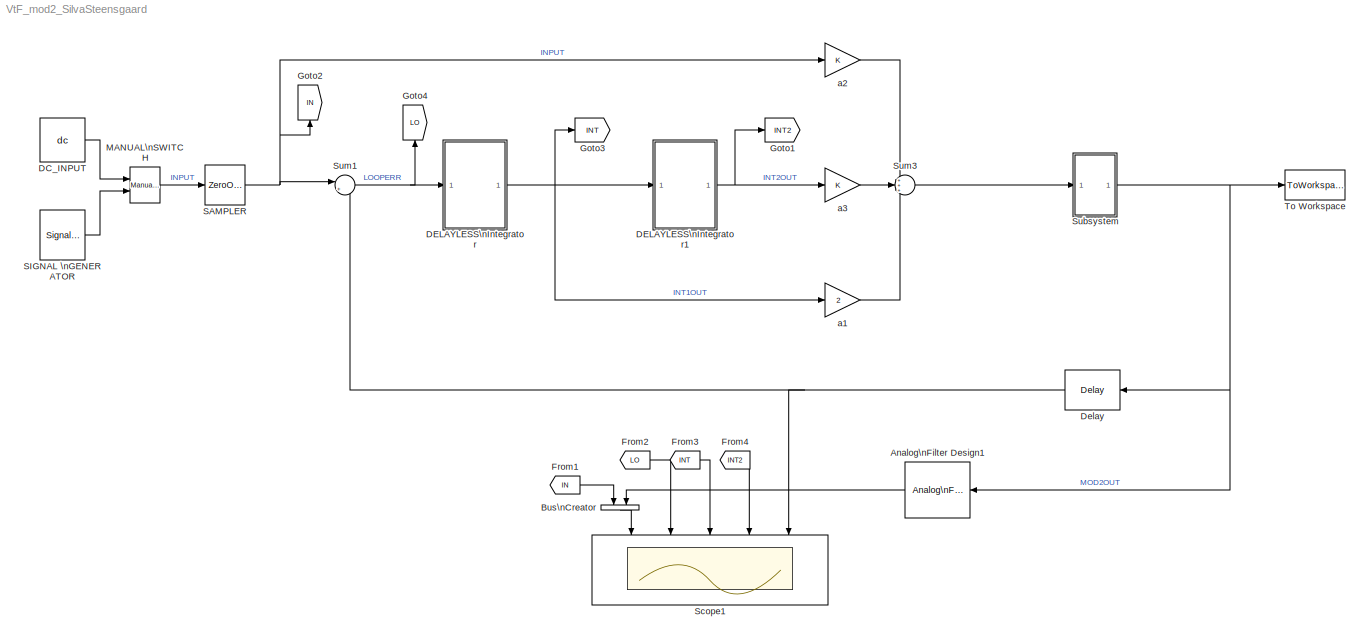
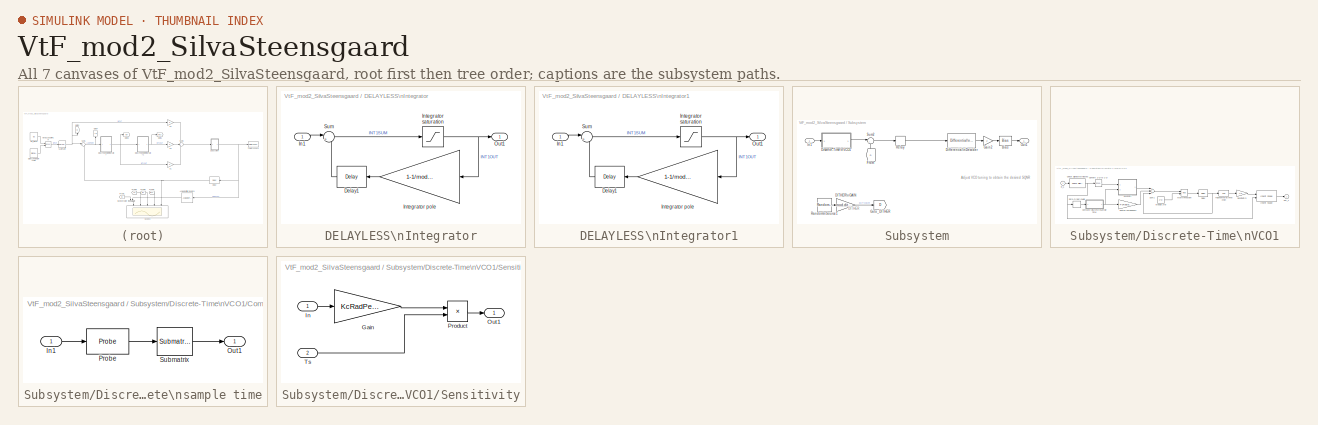
[diagram: thumbnail index - all 7 canvases of the model, root first then tree order]
MODEL VtF_mod2_SilvaSteensgaard
KIND model
BLOCK [Reference] Analog\nFilter Design1  REF=dsparch4/Analog\nFilter Design
  N = 8
  Ports = [1, 1]
  Rp = 2
  Rs = 40
  SID = 166
  SourceBlock = dsparch4/Analog\nFilter Design
  SourceType = Analog Filter Design
  Whi = 80
  Wlo = pi*(Fs/OSR)
  filttype = Lowpass
  method = Butterworth
BLOCK [BusCreator] Bus\nCreator
  DisplayOption = bar
  Inputs = 2
  Ports = [2, 1]
  SID = 167
BLOCK [Constant] DC_INPUT
  OutDataTypeStr = double
  SID = 56
  SampleTime = 1/Fs
  Value = dc
  VectorParams1D = off
BLOCK [SubSystem] DELAYLESS\nIntegrator
  FunctionWithSeparateData = off
  MaskHideContents = off
  MinAlgLoopOccurrences = off
  Opaque = off
  Ports = [1, 1]
  PropExecContextOutsideSubsystem = off
  RTWSystemCode = Auto
  RequestExecContextInheritance = off
  SID = 147
BLOCK [Reference] DELAYLESS\nIntegrator/Delay1  REF=dspsigops/Delay
  InputProcessing = Inherited (this choice will be removed - see release notes)
  Ports = [1, 1]
  SID = 149
  SourceBlock = dspsigops/Delay
  SourceType = Delay
  UserData = DataTag0
  UserDataPersistent = on
  delay = 1
  dif_ic_for_ch = off
  dif_ic_for_dly = off
  dly_unit = Samples
  ic = 0
  ic_detail = off
  reset_popup = None
BLOCK [Inport] DELAYLESS\nIntegrator/In1
  IconDisplay = Port number
  SID = 148
BLOCK [Gain] DELAYLESS\nIntegrator/Integrator pole
  AttributesFormatString = (model finite dc gain)
  Gain = 1-1/mod.igain1
  OutDataTypeStr = Inherit: Inherit via internal rule
  ParamDataTypeStr = Inherit: Inherit via internal rule
  SID = 150
  SaturateOnIntegerOverflow = off
BLOCK [Saturate] DELAYLESS\nIntegrator/Integrator saturation
  InputPortMap = u0
  LowerLimit = -(mod.isat1)
  Ports = [1, 1]
  SID = 151
  UpperLimit = mod.isat1
BLOCK [Outport] DELAYLESS\nIntegrator/Out1
  IconDisplay = Port number
  SID = 153
BLOCK [Sum] DELAYLESS\nIntegrator/Sum
  AttributesFormatString = Integrator summer
  IconShape = round
  InputSameDT = off
  Inputs = |++
  OutDataTypeStr = Inherit: Inherit via internal rule
  Ports = [2, 1]
  SID = 152
  SampleTime = 1/Fs
  SaturateOnIntegerOverflow = off
BLOCK [SubSystem] DELAYLESS\nIntegrator1
  FunctionWithSeparateData = off
  MaskHideContents = off
  MinAlgLoopOccurrences = off
  Opaque = off
  Ports = [1, 1]
  PropExecContextOutsideSubsystem = off
  RTWSystemCode = Auto
  RequestExecContextInheritance = off
  SID = 155
BLOCK [Reference] DELAYLESS\nIntegrator1/Delay1  REF=dspsigops/Delay
  InputProcessing = Inherited (this choice will be removed - see release notes)
  Ports = [1, 1]
  SID = 157
  SourceBlock = dspsigops/Delay
  SourceType = Delay
  UserData = DataTag1
  UserDataPersistent = on
  delay = 1
  dif_ic_for_ch = off
  dif_ic_for_dly = off
  dly_unit = Samples
  ic = 0
  ic_detail = off
  reset_popup = None
BLOCK [Inport] DELAYLESS\nIntegrator1/In1
  IconDisplay = Port number
  SID = 156
BLOCK [Gain] DELAYLESS\nIntegrator1/Integrator pole
  AttributesFormatString = (model finite dc gain)
  Gain = 1-1/mod.igain1
  OutDataTypeStr = Inherit: Inherit via internal rule
  ParamDataTypeStr = Inherit: Inherit via internal rule
  SID = 158
  SaturateOnIntegerOverflow = off
BLOCK [Saturate] DELAYLESS\nIntegrator1/Integrator saturation
  InputPortMap = u0
  LowerLimit = -(mod.isat1)
  Ports = [1, 1]
  SID = 159
  UpperLimit = mod.isat1
BLOCK [Outport] DELAYLESS\nIntegrator1/Out1
  IconDisplay = Port number
  SID = 161
BLOCK [Sum] DELAYLESS\nIntegrator1/Sum
  AttributesFormatString = Integrator summer
  IconShape = round
  InputSameDT = off
  Inputs = |++
  OutDataTypeStr = Inherit: Inherit via internal rule
  Ports = [2, 1]
  SID = 160
  SampleTime = 1/Fs
  SaturateOnIntegerOverflow = off
BLOCK [Reference] Delay  REF=dspsigops/Delay
  InputProcessing = Inherited (this choice will be removed - see release notes)
  Ports = [1, 1]
  SID = 163
  SourceBlock = dspsigops/Delay
  SourceType = Delay
  UserData = DataTag2
  UserDataPersistent = on
  delay = 1
  dif_ic_for_ch = off
  dif_ic_for_dly = off
  dly_unit = Samples
  ic = 0
  ic_detail = off
  reset_popup = None
BLOCK [From] From1
  GotoTag = IN
  SID = 168
BLOCK [From] From2
  GotoTag = LO
  SID = 169
BLOCK [From] From3
  GotoTag = INT
  SID = 170
BLOCK [From] From4
  GotoTag = INT2
  SID = 174
BLOCK [Goto] Goto1
  GotoTag = INT2
  SID = 182
BLOCK [Goto] Goto2
  GotoTag = IN
  SID = 183
BLOCK [Goto] Goto3
  GotoTag = INT
  SID = 181
BLOCK [Goto] Goto4
  GotoTag = LO
  SID = 184
BLOCK [Reference] MANUAL\nSWITCH  REF=simulink/Signal\nRouting/Manual Switch
  AttributesFormatString = Double click to\\nselect the desired\\ninput
  Ports = [2, 1]
  SID = 74
  SourceBlock = simulink/Signal\nRouting/Manual Switch
  SourceType = Manual Switch
  action = 0
  sw = 0
  varsize = off
BLOCK [ZeroOrderHold] SAMPLER
  SID = 164
  SampleTime = 1/Fs
BLOCK [SignalGenerator] SIGNAL \nGENERATOR
  Amplitude = sinamp
  Frequency = sinfreq
  Ports = [0, 1]
  SID = 86
  VectorParams1D = off
BLOCK [Scope] Scope1
  DataFormat = StructureWithTime
  Floating = off
  NumInputPorts = 5
  Ports = [5]
  SID = 171
  SampleTime = 0
  ShowLegends = off
  TimeRange = 2.089895171320487e-05
  YMax = 1.1~1.6~1.6~0.1~5
  YMin = -1.1~-0.6~-0.6~-0.3~-5
  ZoomMode = xonly
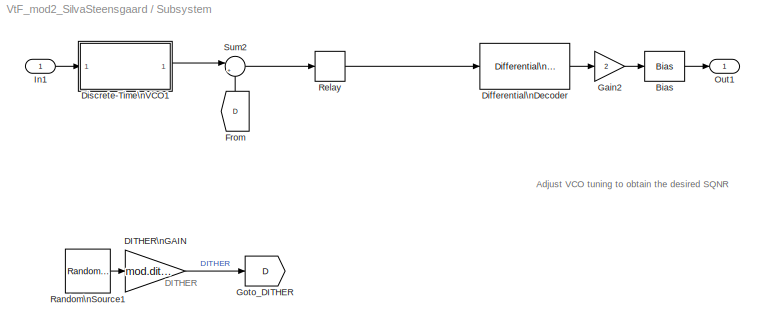
BLOCK [SubSystem] Subsystem
  FunctionWithSeparateData = off
  MaskHideContents = off
  MinAlgLoopOccurrences = off
  Opaque = off
  Ports = [1, 1]
  PropExecContextOutsideSubsystem = off
  RTWSystemCode = Auto
  RequestExecContextInheritance = off
  SID = 144
BLOCK [Bias] Subsystem/Bias
  Bias = -1
  SID = 134
  SaturateOnIntegerOverflow = off
BLOCK [Gain] Subsystem/DITHER\nGAIN
  Gain = mod.dither
  OutDataTypeStr = Inherit: Inherit via internal rule
  ParamDataTypeStr = Inherit: Inherit via internal rule
  SID = 175
  SampleTime = 1/Fs
  SaturateOnIntegerOverflow = off
BLOCK [Reference] Subsystem/Differential\nDecoder  REF=commsrccod2/Differential\nDecoder
  InitCond = 0
  Ports = [1, 1]
  SID = 135
  SourceBlock = commsrccod2/Differential\nDecoder
  SourceType = Differential Decoder
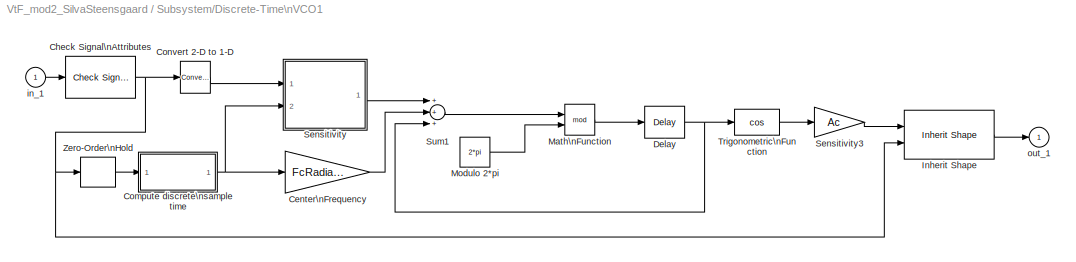
BLOCK [SubSystem] Subsystem/Discrete-Time\nVCO1
  AncestorBlock = commsynccomp2/Discrete-Time\nVCO
  FunctionWithSeparateData = off
  MaskCallbackString = ||||
  MaskCapabilities = commmaskedcaps(gcbh)
  MaskDescription = Generate a discrete-time output signal whose frequency changes in response to the amplitude variations of the input signal. The input signal must be a scalar.
  MaskDisplay = disp('Discrete-Time\\nVCO')
  MaskEnableString = on,on,on,on,on
  MaskHelp = helpview(commbhelp)
  MaskHideContents = off
  MaskIconFrame = on
  MaskIconOpaque = on
  MaskIconRotate = none
  MaskIconUnits = autoscale
  MaskInitialization = if ( (length(Ac)~=1) || (length(Fc)~=1) || (length(Kc)~=1) || (length(Ph)~=1) || (length(ts)~=1) ) \n	error('commblks:DiscTimeVCO:InvalidMaskParams',...\n          'Mask parameters must be scalar values.');\nend\nFcRadians = 2*pi*Fc;\nKcRadPerV = 2*pi*Kc;\n
  MaskPortRotate = default
  MaskPromptString = Output amplitude (V):|Quiescent frequency (Hz):|Input sensitivity (Hz/V):|Initial phase (rad):|Sample time (s):
  MaskSelfModifiable = on
  MaskStyleString = edit,edit,edit,edit,edit
  MaskToolTipString = on,on,on,on,on
  MaskTunableValueString = on,on,on,on,on
  MaskType = Discrete-Time VCO
  MaskValueString = sinamp*2|Fs/4|sinfreq*2|0|1/Fs
  MaskVariables = Ac=@1;Fc=@2;Kc=@3;Ph=@4;ts=@5;
  MaskVisibilityString = on,on,on,on,on
  MinAlgLoopOccurrences = off
  Opaque = off
  Ports = [1, 1]
  PropExecContextOutsideSubsystem = off
  RTWSystemCode = Auto
  RequestExecContextInheritance = off
  SID = 136
BLOCK [Gain] Subsystem/Discrete-Time\nVCO1/Center\nFrequency
  Gain = FcRadians
  OutDataTypeStr = Inherit: Inherit via back propagation
  ParamDataTypeStr = float('double')
  RndMeth = Nearest
  SID = 136:2
  SampleTime = ts
BLOCK [Reference] Subsystem/Discrete-Time\nVCO1/Check Signal\nAttributes  REF=dspsigattribs/Check Signal\nAttributes
  Complexity = Ignore
  DatatypeCheckMethod = Is...
  DatatypeGeneral = Floating-point
  Dimensions = Scalar (1-D or 2-D)
  DimsCheckMethod = Is...
  DtypeFixedSpecific = Any fixed-point
  DtypeFloatSpecific = Any floating-point
  DtypeIntSpecific = Any integer
  Frame = Ignore
  Ports = [1, 1]
  SID = 136:3
  SampleMode = Discrete
  SigAttribCheckMethod = Does not match attributes exactly
  SourceBlock = dspsigattribs/Check Signal\nAttributes
  SourceType = Check Signal Attributes
BLOCK [SubSystem] Subsystem/Discrete-Time\nVCO1/Compute discrete\nsample time
  FunctionWithSeparateData = off
  MaskHideContents = off
  MinAlgLoopOccurrences = off
  Opaque = off
  Ports = [1, 1]
  PropExecContextOutsideSubsystem = off
  RTWSystemCode = Auto
  RequestExecContextInheritance = off
  SID = 136:4
BLOCK [Inport] Subsystem/Discrete-Time\nVCO1/Compute discrete\nsample time/In1
  IconDisplay = Port number
  SID = 136:5
BLOCK [Outport] Subsystem/Discrete-Time\nVCO1/Compute discrete\nsample time/Out1
  IconDisplay = Port number
  SID = 136:8
BLOCK [Probe] Subsystem/Discrete-Time\nVCO1/Compute discrete\nsample time/Probe
  Ports = [1, 1]
  ProbeComplexSignal = off
  ProbeWidth = off
  SID = 136:6
BLOCK [Reference] Subsystem/Discrete-Time\nVCO1/Compute discrete\nsample time/Submatrix  REF=dspmtrx3/Submatrix
  ColEndIndex = 1
  ColEndMode = Last
  ColSpan = One column
  ColStartIndex = 1
  ColStartMode = First
  Ports = [1, 1]
  RowEndIndex = 1
  RowEndMode = Last
  RowSpan = One row
  RowStartIndex = 1
  RowStartMode = First
  SID = 136:7
  SourceBlock = dspmtrx3/Submatrix
  SourceType = Submatrix
BLOCK [Reference] Subsystem/Discrete-Time\nVCO1/Convert 2-D to 1-D  REF=dspsigattribs/Convert 2-D to 1-D
  Ports = [1, 1]
  SID = 136:9
  SourceBlock = dspsigattribs/Convert 2-D to 1-D
  SourceType = Convert 2-D to 1-D
BLOCK [Reference] Subsystem/Discrete-Time\nVCO1/Delay  REF=dspsigops/Delay
  InputProcessing = Columns as channels (frame based)
  Ports = [1, 1]
  SID = 136:10
  SourceBlock = dspsigops/Delay
  SourceType = Delay
  UserData = DataTag3
  UserDataPersistent = on
  delay = 1
  dif_ic_for_ch = off
  dif_ic_for_dly = off
  dly_unit = Samples
  ic = Ph
  ic_detail = on
  reset_popup = None
BLOCK [Reference] Subsystem/Discrete-Time\nVCO1/Inherit Shape  REF=commblksprivate/Inherit Shape
  Ports = [2, 1]
  SID = 136:11
  SourceBlock = commblksprivate/Inherit Shape
  SourceType = Inherit Shape
BLOCK [Math] Subsystem/Discrete-Time\nVCO1/Math\nFunction
  Operator = mod
  Ports = [2, 1]
  SID = 136:12
BLOCK [Constant] Subsystem/Discrete-Time\nVCO1/Modulo 2*pi
  OutDataTypeStr = Inherit: Inherit via back propagation
  SID = 136:13
  SampleTime = ts
  Value = 2*pi
BLOCK [SubSystem] Subsystem/Discrete-Time\nVCO1/Sensitivity
  FunctionWithSeparateData = off
  MaskHideContents = off
  MinAlgLoopOccurrences = off
  Opaque = off
  Ports = [2, 1]
  PropExecContextOutsideSubsystem = off
  RTWSystemCode = Auto
  RequestExecContextInheritance = off
  SID = 136:14
BLOCK [Gain] Subsystem/Discrete-Time\nVCO1/Sensitivity/Gain
  Gain = KcRadPerV
  ParamDataTypeStr = float('double')
  SID = 136:17
BLOCK [Inport] Subsystem/Discrete-Time\nVCO1/Sensitivity/In
  IconDisplay = Port number
  SID = 136:15
BLOCK [Outport] Subsystem/Discrete-Time\nVCO1/Sensitivity/Out1
  IconDisplay = Port number
  SID = 136:19
BLOCK [Product] Subsystem/Discrete-Time\nVCO1/Sensitivity/Product
  InputSameDT = off
  Ports = [2, 1]
  RndMeth = Nearest
  SID = 136:18
BLOCK [Inport] Subsystem/Discrete-Time\nVCO1/Sensitivity/Ts
  IconDisplay = Port number
  Port = 2
  SID = 136:16
BLOCK [Gain] Subsystem/Discrete-Time\nVCO1/Sensitivity3
  Gain = Ac
  SID = 136:20
BLOCK [Sum] Subsystem/Discrete-Time\nVCO1/Sum1
  Inputs = +++
  Ports = [3, 1]
  SID = 136:21
BLOCK [Trigonometry] Subsystem/Discrete-Time\nVCO1/Trigonometric\nFunction
  Operator = cos
  Ports = [1, 1]
  SID = 136:22
BLOCK [ZeroOrderHold] Subsystem/Discrete-Time\nVCO1/Zero-Order\nHold
  SID = 136:23
  SampleTime = ts
BLOCK [Inport] Subsystem/Discrete-Time\nVCO1/in_1
  IconDisplay = Port number
  SID = 136:1
BLOCK [Outport] Subsystem/Discrete-Time\nVCO1/out_1
  IconDisplay = Port number
  InitialOutput = 0
  SID = 136:24
BLOCK [From] Subsystem/From
  GotoTag = D
  SID = 179
BLOCK [Gain] Subsystem/Gain2
  Gain = 2
  OutDataTypeStr = Inherit: Inherit via internal rule
  ParamDataTypeStr = Inherit: Inherit via internal rule
  SID = 138
  SampleTime = 1/Fs
  SaturateOnIntegerOverflow = off
BLOCK [Goto] Subsystem/Goto_DITHER
  GotoTag = D
  SID = 176
BLOCK [Inport] Subsystem/In1
  IconDisplay = Port number
  SID = 146
BLOCK [Outport] Subsystem/Out1
  IconDisplay = Port number
  SID = 145
BLOCK [Reference] Subsystem/Random\nSource1  REF=dspsrcs4/Random\nSource
  CltLength = 12
  DataType = Double
  IsInherit = off
  MaxVal = 1
  MeanVal = 0
  MinVal = -1
  NormMethod = Ziggurat
  OutComplex = Real
  Ports = [0, 1]
  RepMode = Not repeatable
  SID = 177
  SampFrame = 1
  SampMode = Discrete
  SampTime = 1/Fs
  SourceBlock = dspsrcs4/Random\nSource
  SourceType = Random Source
  SrcType = Uniform
  UserData = DataTag4
  UserDataPersistent = on
  VarVal = 1
  rawSeed = 1
BLOCK [Relay] Subsystem/Relay
  InputProcessing = Elements as channels (sample based)
  SID = 139
  SampleTime = 1/Fs
BLOCK [Sum] Subsystem/Sum2
  IconShape = round
  InputSameDT = off
  Inputs = |++
  OutDataTypeStr = Inherit: Inherit via internal rule
  Ports = [2, 1]
  SID = 180
  SampleTime = 1/Fs
  SaturateOnIntegerOverflow = off
BLOCK [Sum] Sum1
  AttributesFormatString = Modulator Input\\nLoop Error (input - fbk)
  IconShape = round
  InputSameDT = off
  Inputs = |+-
  OutDataTypeStr = Inherit: Inherit via internal rule
  Ports = [2, 1]
  SID = 7
  SaturateOnIntegerOverflow = off
BLOCK [Sum] Sum3
  IconShape = round
  InputSameDT = off
  Inputs = +++
  OutDataTypeStr = Inherit: Inherit via internal rule
  Ports = [3, 1]
  SID = 131
  SaturateOnIntegerOverflow = off
BLOCK [ToWorkspace] To Workspace
  AttributesFormatString = Export output to\\nworkspace for\\npost-processing
  MaxDataPoints = inf
  Ports = [1]
  SID = 31
  SampleTime = -1
  VariableName = mod_out
BLOCK [Gain] a1
  Gain = 2
  OutDataTypeStr = Inherit: Inherit via internal rule
  ParamDataTypeStr = Inherit: Inherit via internal rule
  SID = 130
  SaturateOnIntegerOverflow = off
BLOCK [Gain] a2
  OutDataTypeStr = Inherit: Inherit via internal rule
  ParamDataTypeStr = Inherit: Inherit via internal rule
  SID = 132
  SaturateOnIntegerOverflow = off
BLOCK [Gain] a3
  OutDataTypeStr = Inherit: Inherit via internal rule
  ParamDataTypeStr = Inherit: Inherit via internal rule
  SID = 133
  SaturateOnIntegerOverflow = off
ANNOTATION Subsystem: DITHER \n\n\n\n\n\n
ANNOTATION Subsystem: Adjust VCO tuning to obtain the desired SQNR
LINE Analog\nFilter Design1:1 -> Bus\nCreator:2
LINE Bus\nCreator:1 -> Scope1:1
LINE DC_INPUT:1 -> MANUAL\nSWITCH:1
LINE DELAYLESS\nIntegrator/Delay1:1 -> DELAYLESS\nIntegrator/Sum:2
LINE DELAYLESS\nIntegrator/In1:1 -> DELAYLESS\nIntegrator/Sum:1
LINE DELAYLESS\nIntegrator/Integrator pole:1 -> DELAYLESS\nIntegrator/Delay1:1
NET DELAYLESS\nIntegrator/Integrator saturation:1 -> DELAYLESS\nIntegrator/Integrator pole:1, DELAYLESS\nIntegrator/Out1:1
LINE DELAYLESS\nIntegrator/Sum:1 -> DELAYLESS\nIntegrator/Integrator saturation:1
LINE DELAYLESS\nIntegrator1/Delay1:1 -> DELAYLESS\nIntegrator1/Sum:2
LINE DELAYLESS\nIntegrator1/In1:1 -> DELAYLESS\nIntegrator1/Sum:1
LINE DELAYLESS\nIntegrator1/Integrator pole:1 -> DELAYLESS\nIntegrator1/Delay1:1
NET DELAYLESS\nIntegrator1/Integrator saturation:1 -> DELAYLESS\nIntegrator1/Integrator pole:1, DELAYLESS\nIntegrator1/Out1:1
LINE DELAYLESS\nIntegrator1/Sum:1 -> DELAYLESS\nIntegrator1/Integrator saturation:1
NET DELAYLESS\nIntegrator1:1 -> Goto1:1, a3:1
NET DELAYLESS\nIntegrator:1 -> DELAYLESS\nIntegrator1:1, Goto3:1, a1:1
NET Delay:1 -> Scope1:5, Sum1:2
LINE From1:1 -> Bus\nCreator:1
LINE From2:1 -> Scope1:2
LINE From3:1 -> Scope1:3
LINE From4:1 -> Scope1:4
LINE MANUAL\nSWITCH:1 -> SAMPLER:1
NET SAMPLER:1 -> Goto2:1, Sum1:1, a2:1
LINE SIGNAL \nGENERATOR:1 -> MANUAL\nSWITCH:2
LINE Subsystem/Bias:1 -> Subsystem/Out1:1
LINE Subsystem/DITHER\nGAIN:1 -> Subsystem/Goto_DITHER:1
LINE Subsystem/Differential\nDecoder:1 -> Subsystem/Gain2:1
LINE Subsystem/Discrete-Time\nVCO1/Center\nFrequency:1 -> Subsystem/Discrete-Time\nVCO1/Sum1:2
NET Subsystem/Discrete-Time\nVCO1/Check Signal\nAttributes:1 -> Subsystem/Discrete-Time\nVCO1/Convert 2-D to 1-D:1, Subsystem/Discrete-Time\nVCO1/Inherit Shape:2, Subsystem/Discrete-Time\nVCO1/Zero-Order\nHold:1
LINE Subsystem/Discrete-Time\nVCO1/Compute discrete\nsample time/In1:1 -> Subsystem/Discrete-Time\nVCO1/Compute discrete\nsample time/Probe:1
LINE Subsystem/Discrete-Time\nVCO1/Compute discrete\nsample time/Probe:1 -> Subsystem/Discrete-Time\nVCO1/Compute discrete\nsample time/Submatrix:1
LINE Subsystem/Discrete-Time\nVCO1/Compute discrete\nsample time/Submatrix:1 -> Subsystem/Discrete-Time\nVCO1/Compute discrete\nsample time/Out1:1
NET Subsystem/Discrete-Time\nVCO1/Compute discrete\nsample time:1 -> Subsystem/Discrete-Time\nVCO1/Center\nFrequency:1, Subsystem/Discrete-Time\nVCO1/Sensitivity:2
LINE Subsystem/Discrete-Time\nVCO1/Convert 2-D to 1-D:1 -> Subsystem/Discrete-Time\nVCO1/Sensitivity:1
NET Subsystem/Discrete-Time\nVCO1/Delay:1 -> Subsystem/Discrete-Time\nVCO1/Sum1:3, Subsystem/Discrete-Time\nVCO1/Trigonometric\nFunction:1
LINE Subsystem/Discrete-Time\nVCO1/Inherit Shape:1 -> Subsystem/Discrete-Time\nVCO1/out_1:1
LINE Subsystem/Discrete-Time\nVCO1/Math\nFunction:1 -> Subsystem/Discrete-Time\nVCO1/Delay:1
LINE Subsystem/Discrete-Time\nVCO1/Modulo 2*pi:1 -> Subsystem/Discrete-Time\nVCO1/Math\nFunction:2
LINE Subsystem/Discrete-Time\nVCO1/Sensitivity/Gain:1 -> Subsystem/Discrete-Time\nVCO1/Sensitivity/Product:1
LINE Subsystem/Discrete-Time\nVCO1/Sensitivity/In:1 -> Subsystem/Discrete-Time\nVCO1/Sensitivity/Gain:1
LINE Subsystem/Discrete-Time\nVCO1/Sensitivity/Product:1 -> Subsystem/Discrete-Time\nVCO1/Sensitivity/Out1:1
LINE Subsystem/Discrete-Time\nVCO1/Sensitivity/Ts:1 -> Subsystem/Discrete-Time\nVCO1/Sensitivity/Product:2
LINE Subsystem/Discrete-Time\nVCO1/Sensitivity3:1 -> Subsystem/Discrete-Time\nVCO1/Inherit Shape:1
LINE Subsystem/Discrete-Time\nVCO1/Sensitivity:1 -> Subsystem/Discrete-Time\nVCO1/Sum1:1
LINE Subsystem/Discrete-Time\nVCO1/Sum1:1 -> Subsystem/Discrete-Time\nVCO1/Math\nFunction:1
LINE Subsystem/Discrete-Time\nVCO1/Trigonometric\nFunction:1 -> Subsystem/Discrete-Time\nVCO1/Sensitivity3:1
LINE Subsystem/Discrete-Time\nVCO1/Zero-Order\nHold:1 -> Subsystem/Discrete-Time\nVCO1/Compute discrete\nsample time:1
LINE Subsystem/Discrete-Time\nVCO1/in_1:1 -> Subsystem/Discrete-Time\nVCO1/Check Signal\nAttributes:1
LINE Subsystem/Discrete-Time\nVCO1:1 -> Subsystem/Sum2:1
LINE Subsystem/From:1 -> Subsystem/Sum2:2
LINE Subsystem/Gain2:1 -> Subsystem/Bias:1
LINE Subsystem/In1:1 -> Subsystem/Discrete-Time\nVCO1:1
LINE Subsystem/Random\nSource1:1 -> Subsystem/DITHER\nGAIN:1
LINE Subsystem/Relay:1 -> Subsystem/Differential\nDecoder:1
LINE Subsystem/Sum2:1 -> Subsystem/Relay:1
NET Subsystem:1 -> Analog\nFilter Design1:1, Delay:1, To Workspace:1
NET Sum1:1 -> DELAYLESS\nIntegrator:1, Goto4:1
LINE Sum3:1 -> Subsystem:1
LINE a1:1 -> Sum3:3
LINE a2:1 -> Sum3:1
LINE a3:1 -> Sum3:2
note: NET lines group one-source signal fan-out (src -> all destinations, sorted); 1:1 wires keep LINE
